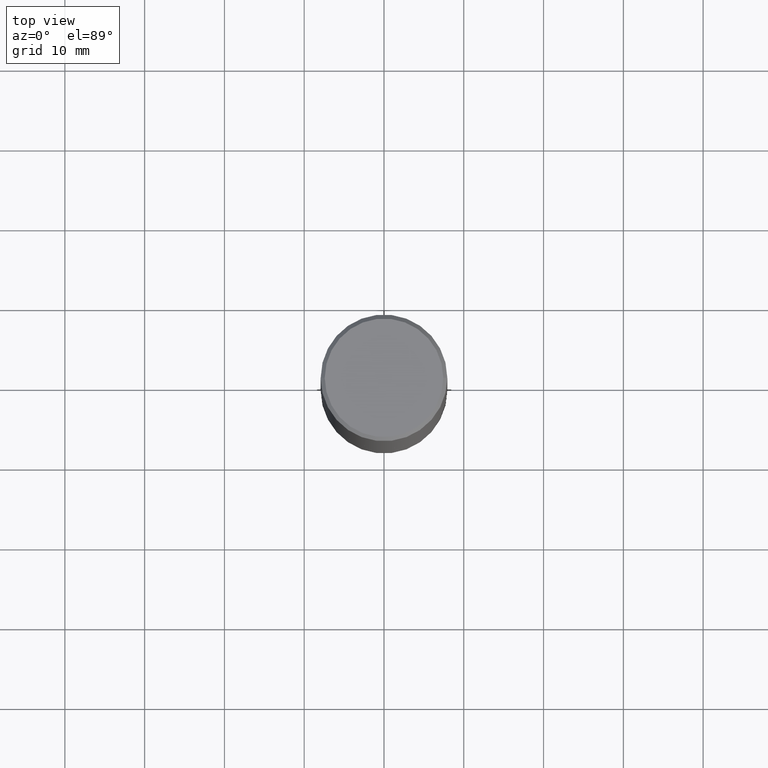
[diagram: clean part render]
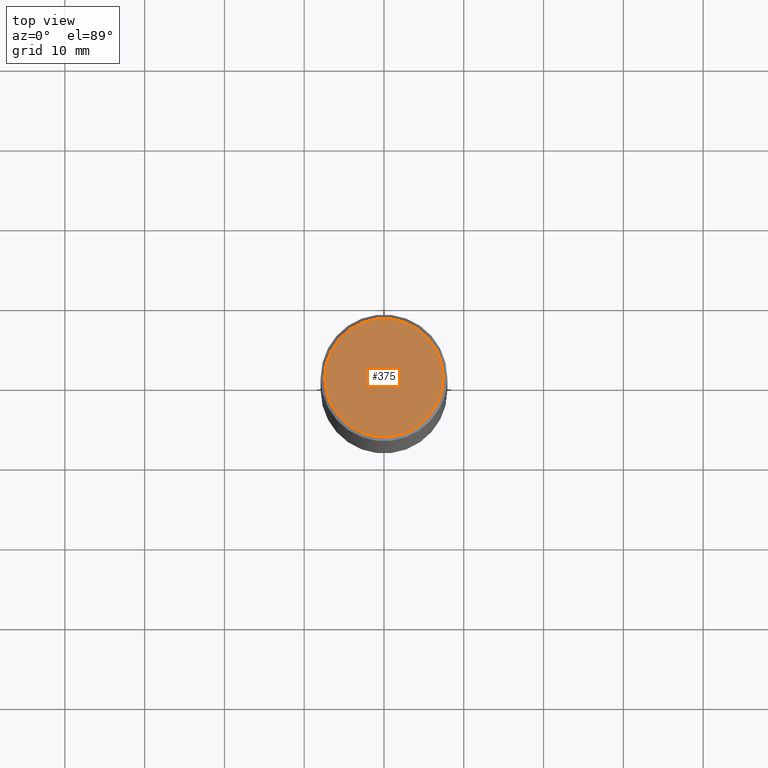
[diagram: same view with one face highlighted and labeled with its STEP entity id]
A machine part, top view. The second image highlights one B-rep face of the part: STEP entity #375.
In plain terms, the highlighted planar face has unit normal (0, -0, -1).
Its self-contained STEP definition (entity closure, byte-faithful):
#5 = CARTESIAN_POINT ( 'NONE',  ( -0.2924999999999998157, 2.077431396611662611E-15, 4.268512490086005323E-18 ) ) ;
#45 = VERTEX_POINT ( 'NONE', #168 ) ;
#63 = VERTEX_POINT ( 'NONE', #5 ) ;
#90 = CIRCLE ( 'NONE', #339, 0.2924999999999998157 ) ;
#95 = DIRECTION ( 'NONE',  ( 1.000000000000000000, -6.982962677686266711E-15, 4.876067333457692840E-29 ) ) ;
#128 = DIRECTION ( 'NONE',  ( -2.445468806185136597E-29, 3.491481338843145583E-15, 1.000000000000000000 ) ) ;
#147 = CIRCLE ( 'NONE', #203, 0.2924999999999998157 ) ;
#150 = ORIENTED_EDGE ( 'NONE', *, *, #435, .T. ) ;
#162 = DIRECTION ( 'NONE',  ( 1.000000000000000000, -6.982962677686266711E-15, 4.876067333457692840E-29 ) ) ;
#166 = DIRECTION ( 'NONE',  ( -2.445468806185136597E-29, 3.491481338843145583E-15, 1.000000000000000000 ) ) ;
#167 = EDGE_LOOP ( 'NONE', ( #410, #150 ) ) ;
#168 = CARTESIAN_POINT ( 'NONE',  ( 0.2924999999999998157, -2.110215457714318748E-15, 4.268512490114932791E-18 ) ) ;
#203 = AXIS2_PLACEMENT_3D ( 'NONE', #302, #166, #95 ) ;
#223 = CARTESIAN_POINT ( 'NONE',  ( -1.043851414335219820E-46, 1.490343170380447200E-32, 4.268512490100411279E-18 ) ) ;
#256 = CARTESIAN_POINT ( 'NONE',  ( 2.042516583223231356E-15, 0.2924999999999998157, -1.019124035366569212E-15 ) ) ;
#273 = EDGE_CURVE ( 'NONE', #63, #45, #90, .T. ) ;
#298 = DIRECTION ( 'NONE',  ( -1.000000000000000000, 6.982962677686265922E-15, -4.876176775795935793E-29 ) ) ;
#302 = CARTESIAN_POINT ( 'NONE',  ( -1.043851414335219820E-46, 1.490343170380447200E-32, 4.268512490100411279E-18 ) ) ;
#339 = AXIS2_PLACEMENT_3D ( 'NONE', #223, #128, #162 ) ;
#371 = DIRECTION ( 'NONE',  ( 2.438088387897960049E-29, -3.491481338843145188E-15, -1.000000000000000000 ) ) ;
#375 = ADVANCED_FACE ( 'NONE', ( #436 ), #403, .F. ) ;
#403 = PLANE ( 'NONE',  #411 ) ;
#410 = ORIENTED_EDGE ( 'NONE', *, *, #273, .T. ) ;
#411 = AXIS2_PLACEMENT_3D ( 'NONE', #256, #371, #298 ) ;
#435 = EDGE_CURVE ( 'NONE', #45, #63, #147, .T. ) ;
#436 = FACE_OUTER_BOUND ( 'NONE', #167, .T. ) ;